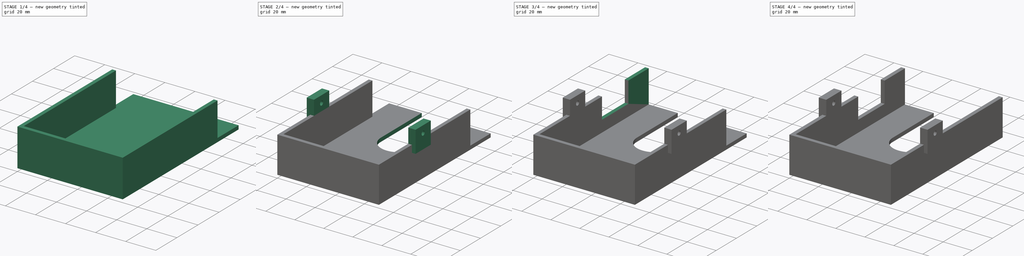
[diagram: build sequence overview — one tinted view per stage of 4, left to right]
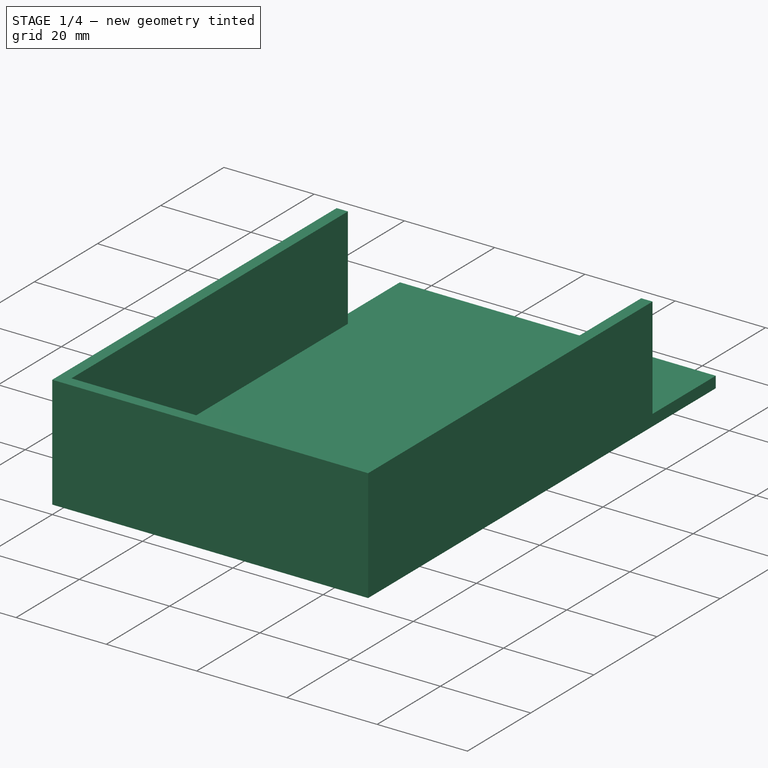
[diagram: stage 1 of 4 — iso view after this stage's code; geometry added in this stage tinted green]
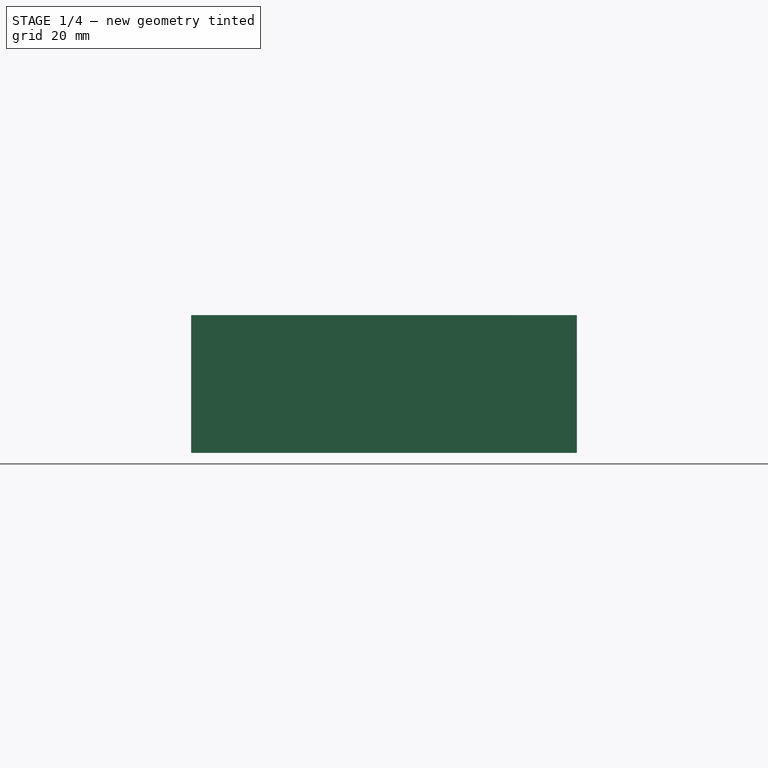
[diagram: stage 1 of 4 — front view after this stage's code; geometry added in this stage tinted green]
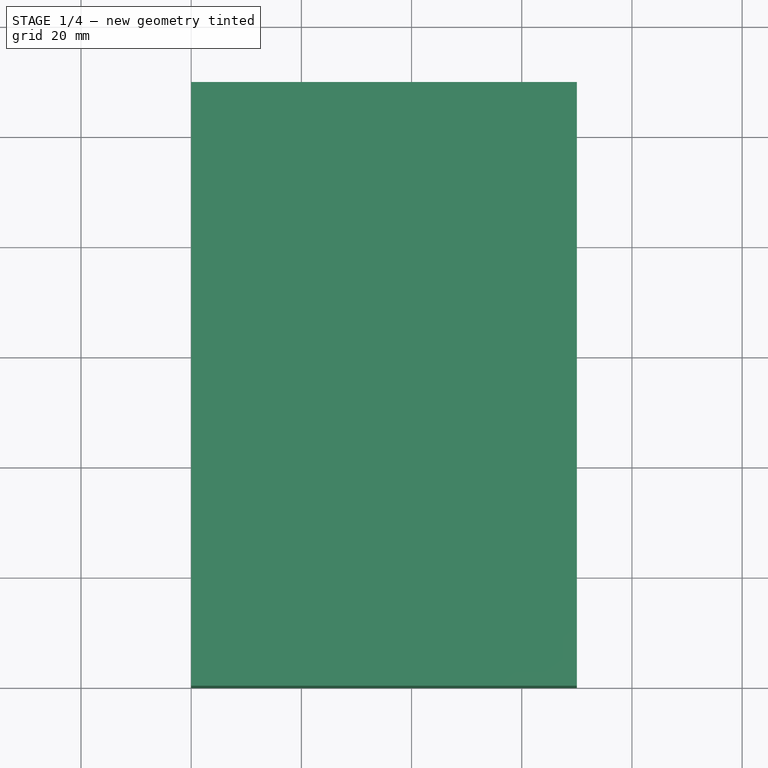
[diagram: stage 1 of 4 — top view after this stage's code; geometry added in this stage tinted green]
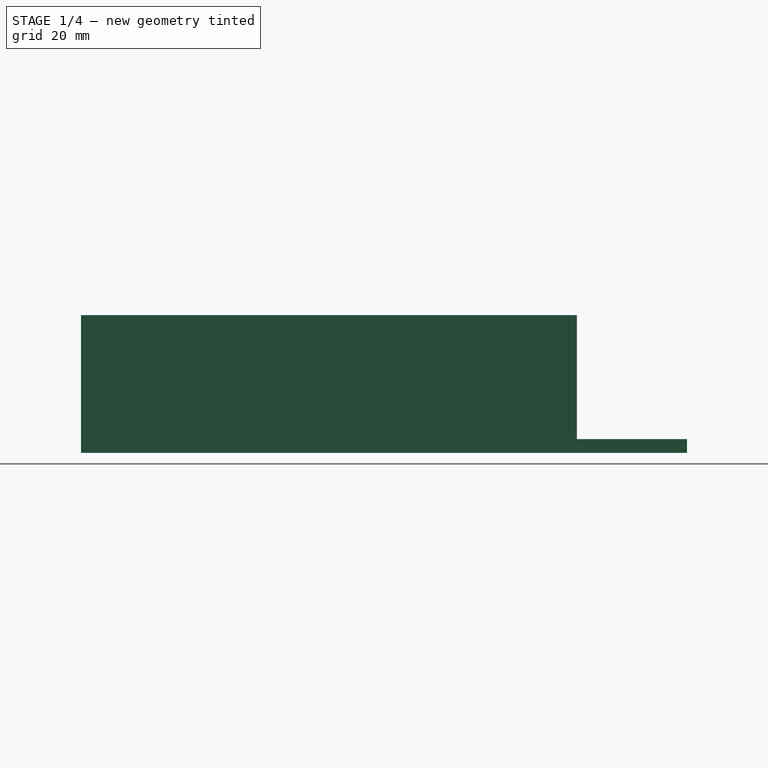
[diagram: stage 1 of 4 — right view after this stage's code; geometry added in this stage tinted green]
FCSTD DOCUMENT  (FreeCAD 1.0R39109 (Git))
Label: Gerüst-Kartenhalter-DerGerät
License: All rights reserved
LicenseURL: https://en.wikipedia.org/wiki/All_rights_reserved
objects: Sketcher::SketchObject×11, PartDesign::Pad×7, PartDesign::Pocket×4, PartDesign::Body×1
note: 56 computed .brp shape members not serialized (recipe doc carries the construction recipe); baked Part::Feature solids carry a one-line shape summary decoded from their .brp

FEATURE [Sketcher::SketchObject] Sketch
  ArcFitTolerance = 1e-06
  AttachmentSupport = -> [YZ_Plane]
  FullyConstrained = true
  MakeInternals = false
  MapMode = 5
  Placement = pos=(0,0,0) rot=(0.57735,0.57735,0.57735;2.0944rad)
  sketch-geometry (4):
    g0: LineSegment StartX=0 StartY=0 StartZ=0 EndX=110 EndY=0 EndZ=0
    g1: LineSegment StartX=110 StartY=0 StartZ=0 EndX=110 EndY=25 EndZ=0
    g2: LineSegment StartX=110 StartY=25 StartZ=0 EndX=0 EndY=25 EndZ=0
    g3: LineSegment StartX=0 StartY=25 StartZ=0 EndX=0 EndY=0 EndZ=0
  constraints (11):
    c: Coincident(g0,g1)
    c: Coincident(g1,g2)
    c: Coincident(g2,g3)
    c: Coincident(g3,g0)
    c: Horizontal(g0)
    c: Horizontal(g2)
    c: Vertical(g1)
    c: Vertical(g3)
    c: Distance(g1,g3) = 110
    c: Distance(g0,g2) = 25
    c: Coincident(g0,g-1)
FEATURE [PartDesign::Pad] Pad
  Direction = (1,0,0)
  Length = 70
  Length2 = 10
  Placement = pos=(0,0,0) rot=(1,1,1;2.0944rad)
  Profile = -> Sketch
  ReferenceAxis = -> Sketch [N_Axis]
  Refine = true
  Suppressed = false
  Type = 0
FEATURE [Sketcher::SketchObject] Sketch001
  ArcFitTolerance = 1e-06
  AttachmentSupport = -> [Pad]
  ExternalGeometry = -> [Pad]
  FullyConstrained = true
  MakeInternals = false
  MapMode = 5
  Placement = pos=(-2.8e-15,8.3e-15,25) rot=(0,0,-1;1.5708rad)
  sketch-geometry (9):
    g0: LineSegment [constr] StartX=-110 StartY=70 StartZ=0 EndX=0 EndY=0 EndZ=0
    g1: LineSegment StartX=-107.5 StartY=2.5 StartZ=0 EndX=-2.5 EndY=2.5 EndZ=0
    g2: LineSegment StartX=-2.5 StartY=2.5 StartZ=0 EndX=-2.5 EndY=67.5 EndZ=0
    g3: LineSegment StartX=-2.5 StartY=67.5 StartZ=0 EndX=-107.5 EndY=67.5 EndZ=0
    g4: LineSegment [constr] StartX=-107.5 StartY=67.5 StartZ=0 EndX=-107.5 EndY=2.5 EndZ=0
    g5: GeomPoint [constr] X=-55 Y=35 Z=0
    g6: LineSegment StartX=-107.5 StartY=67.5 StartZ=0 EndX=-110 EndY=67.5 EndZ=0
    g7: LineSegment StartX=-110 StartY=67.5 StartZ=0 EndX=-110 EndY=2.5 EndZ=0
    g8: LineSegment StartX=-110 StartY=2.5 StartZ=0 EndX=-107.5 EndY=2.5 EndZ=0
  constraints (22):
    c: Coincident(g0,g-3)
    c: Coincident(g0,g-1)
    c: Coincident(g1,g2)
    c: Coincident(g2,g3)
    c: Coincident(g3,g4)
    c: Coincident(g4,g1)
    c: Horizontal(g1)
    c: Horizontal(g3)
    c: Vertical(g2)
    c: Vertical(g4)
    c: Symmetric(g3,g1,g5)
    c: Symmetric(g0,g0,g5)
    c: DistanceY(g2,g2) = 65
    c: DistanceX(g1,g1) = 105
    c: Coincident(g3,g6)
    c: PointOnObject(g6,g-4)
    c: Horizontal(g6)
    c: Coincident(g6,g7)
    c: PointOnObject(g7,g-4)
    c: Coincident(g7,g8)
    c: Coincident(g8,g1)
    c: Horizontal(g8)
FEATURE [PartDesign::Pocket] Pocket
  BaseFeature = -> Pad
  Direction = (0,0,-1)
  Length = 22.5
  Length2 = 5
  Placement = pos=(0,0,0) rot=(1,1,1;2.0944rad)
  Profile = -> Sketch001
  ReferenceAxis = -> Sketch001 [N_Axis]
  Refine = true
  Suppressed = false
  Type = 0
FEATURE [Sketcher::SketchObject] Sketch002
  ArcFitTolerance = 1e-06
  AttachmentSupport = -> [Pocket]
  ExternalGeometry = -> [Pocket]
  FullyConstrained = true
  MakeInternals = false
  MapMode = 5
  Placement = pos=(70,-3.11e-14,1.55e-14) rot=(0.57735,0.57735,0.57735;2.0944rad)
  sketch-geometry (4):
    g0: LineSegment StartX=110 StartY=25 StartZ=0 EndX=90 EndY=25 EndZ=0
    g1: LineSegment StartX=90 StartY=25 StartZ=0 EndX=90 EndY=2.5 EndZ=0
    g2: LineSegment StartX=90 StartY=2.5 StartZ=0 EndX=110 EndY=2.5 EndZ=0
    g3: LineSegment StartX=110 StartY=2.5 StartZ=0 EndX=110 EndY=25 EndZ=0
  constraints (11):
    c: Coincident(g0,g1)
    c: Coincident(g1,g2)
    c: Coincident(g2,g3)
    c: Coincident(g3,g0)
    c: Horizontal(g0)
    c: Horizontal(g2)
    c: Vertical(g1)
    c: Vertical(g3)
    c: Coincident(g0,g-3)
    c: DistanceX(g2,g2) = 20
    c: DistanceY(g3,g3) = 22.5
FEATURE [PartDesign::Pocket] Pocket001
  BaseFeature = -> Pocket
  Direction = (-1,0,0)
  Length = 5
  Length2 = 5
  Placement = pos=(0,0,0) rot=(1,1,1;2.0944rad)
  Profile = -> Sketch002
  ReferenceAxis = -> Sketch002 [N_Axis]
  Refine = true
  Suppressed = false
  Type = 1
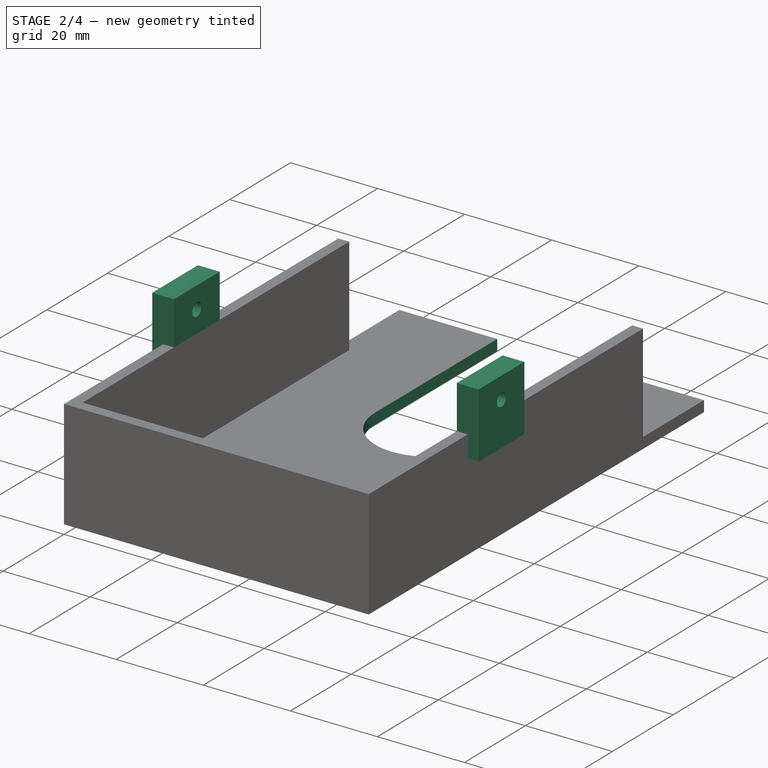
[diagram: stage 2 of 4 — iso view after this stage's code; geometry added in this stage tinted green]
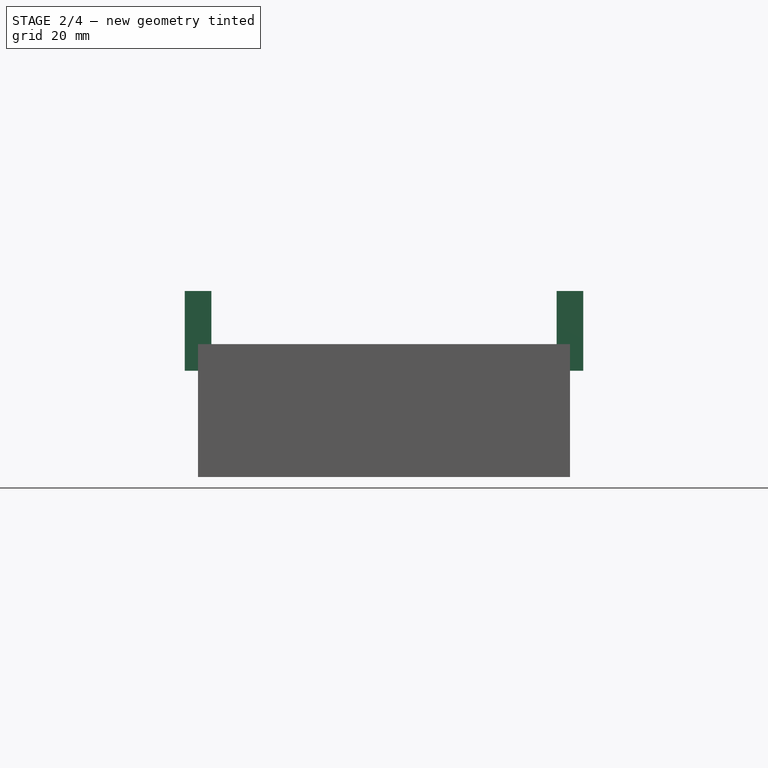
[diagram: stage 2 of 4 — front view after this stage's code; geometry added in this stage tinted green]
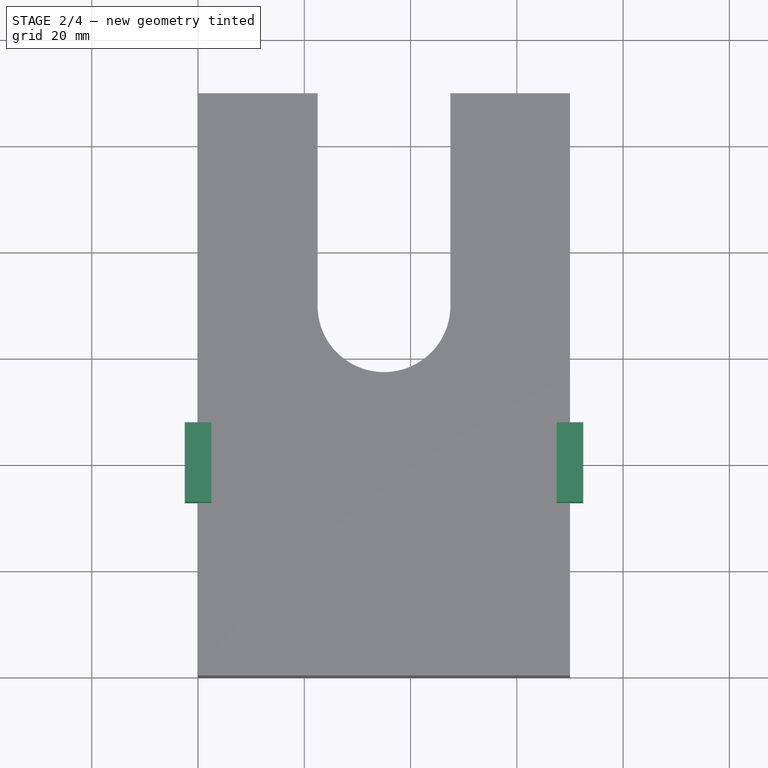
[diagram: stage 2 of 4 — top view after this stage's code; geometry added in this stage tinted green]
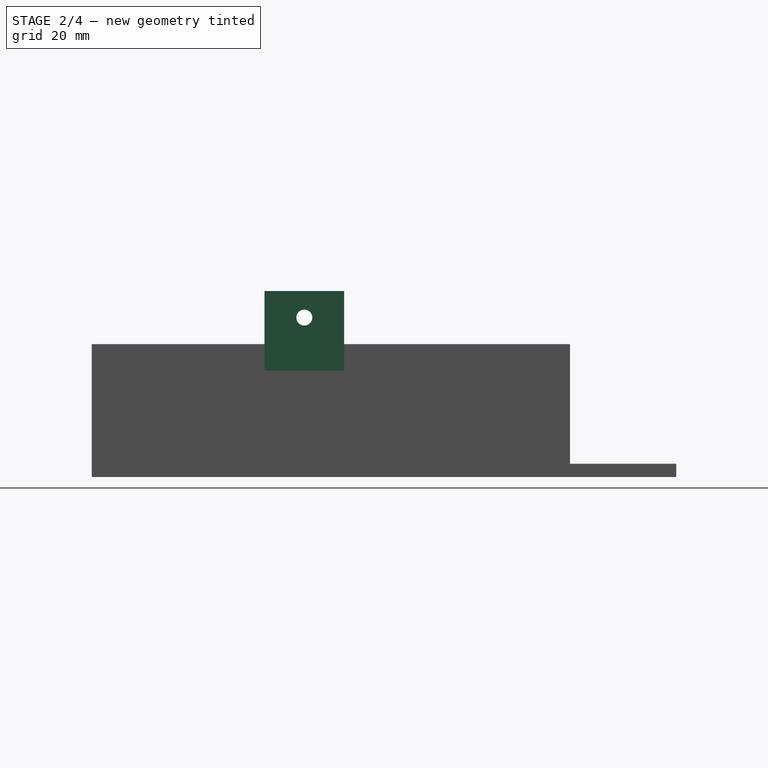
[diagram: stage 2 of 4 — right view after this stage's code; geometry added in this stage tinted green]
FEATURE [Sketcher::SketchObject] Sketch003
  ArcFitTolerance = 1e-06
  AttachmentSupport = -> [Pocket001]
  ExternalGeometry = -> [Pocket001]
  FullyConstrained = true
  MakeInternals = false
  MapMode = 5
  Placement = pos=(70,-4.66e-14,2.33e-14) rot=(0.57735,0.57735,0.57735;2.0944rad)
  sketch-geometry (6):
    g0: LineSegment StartX=32.5 StartY=20 StartZ=0 EndX=47.5 EndY=20 EndZ=0
    g1: LineSegment StartX=47.5 StartY=20 StartZ=0 EndX=47.5 EndY=35 EndZ=0
    g2: LineSegment StartX=47.5 StartY=35 StartZ=0 EndX=32.5 EndY=35 EndZ=0
    g3: LineSegment StartX=32.5 StartY=35 StartZ=0 EndX=32.5 EndY=20 EndZ=0
    g4: Circle CenterX=40 CenterY=30 CenterZ=0 NormalX=0 NormalY=0 NormalZ=1 AngleXU=0 Radius=1.5
    g5: LineSegment [constr] StartX=32.5 StartY=25 StartZ=0 EndX=47.5 EndY=35 EndZ=0
  constraints (17):
    c: Coincident(g0,g1)
    c: Coincident(g1,g2)
    c: Coincident(g2,g3)
    c: Coincident(g3,g0)
    c: Horizontal(g0)
    c: Horizontal(g2)
    c: Vertical(g1)
    c: Vertical(g3)
    c: DistanceX(g0,g0) = 15
    c: Diameter(g4) = 3
    c: PointOnObject(g5,g-4)
    c: Coincident(g5,g1)
    c: PointOnObject(g5,g3)
    c: Symmetric(g5,g5,g4)
    c: DistanceY(g3,g3) = 15
    c: Distance(g2,g-4) = 10
    c: DistanceX(g4,g-4) = 50
FEATURE [PartDesign::Pad] Pad001
  BaseFeature = -> Pocket001
  Direction = (1,0,0)
  Length = 5
  Length2 = 10
  Midplane = true
  Placement = pos=(0,0,0) rot=(1,1,1;2.0944rad)
  Profile = -> Sketch003
  ReferenceAxis = -> Sketch003 [N_Axis]
  Refine = true
  Suppressed = false
  Type = 0
FEATURE [Sketcher::SketchObject] Sketch004
  ArcFitTolerance = 1e-06
  AttachmentSupport = -> [Pad001]
  ExternalGeometry = -> [Pad001]
  FullyConstrained = true
  MakeInternals = false
  MapMode = 5
  Placement = pos=(0,0,0) rot=(0.57735,0.57735,-0.57735;4.18879rad)
  sketch-geometry (6):
    g0: LineSegment StartX=32.5 StartY=-35 StartZ=0 EndX=47.5 EndY=-35 EndZ=0
    g1: LineSegment StartX=47.5 StartY=-35 StartZ=0 EndX=47.5 EndY=-20 EndZ=0
    g2: LineSegment StartX=47.5 StartY=-20 StartZ=0 EndX=32.5 EndY=-20 EndZ=0
    g3: LineSegment StartX=32.5 StartY=-20 StartZ=0 EndX=32.5 EndY=-35 EndZ=0
    g4: LineSegment [constr] StartX=32.5 StartY=-35 StartZ=0 EndX=47.5 EndY=-25 EndZ=0
    g5: Circle CenterX=40 CenterY=-30 CenterZ=0 NormalX=0 NormalY=0 NormalZ=1 AngleXU=0 Radius=1.5
  constraints (14):
    c: Coincident(g-5,g0)
    c: Coincident(g0,g-4)
    c: Coincident(g0,g1)
    c: Coincident(g1,g2)
    c: Horizontal(g2)
    c: Coincident(g2,g3)
    c: Coincident(g3,g0)
    c: PointOnObject(g-5,g3)
    c: PointOnObject(g-4,g1)
    c: DistanceY(g1,g1) = 15
    c: Coincident(g4,g0)
    c: Coincident(g4,g-4)
    c: Diameter(g5) = 3
    c: Symmetric(g4,g4,g5)
FEATURE [PartDesign::Pad] Pad002
  BaseFeature = -> Pad001
  Direction = (-1,0,0)
  Length = 5
  Length2 = 10
  Midplane = true
  Placement = pos=(0,0,0) rot=(1,1,1;2.0944rad)
  Profile = -> Sketch004
  ReferenceAxis = -> Sketch004 [N_Axis]
  Refine = true
  Suppressed = false
  Type = 0
FEATURE [Sketcher::SketchObject] Sketch005
  ArcFitTolerance = 1e-06
  FullyConstrained = true
  MakeInternals = false
  MapMode = 5
  Placement = pos=(0,0,0) rot=(0.707107,0.707107,0;3.14159rad)
  sketch-geometry (4):
    g0: ArcOfCircle CenterX=70 CenterY=35 CenterZ=0 NormalX=0 NormalY=0 NormalZ=1 AngleXU=0 Radius=12.5 StartAngle=1.5708 EndAngle=4.71239
    g1: ArcOfCircle CenterX=110 CenterY=35 CenterZ=0 NormalX=0 NormalY=0 NormalZ=1 AngleXU=0 Radius=12.5 StartAngle=4.71239 EndAngle=7.85398
    g2: LineSegment StartX=70 StartY=47.5 StartZ=0 EndX=110 EndY=47.5 EndZ=0
    g3: LineSegment StartX=70 StartY=22.5 StartZ=0 EndX=110 EndY=22.5 EndZ=0
  constraints (9):
    c: Tangent(g0,g2) = 1.5708
    c: Tangent(g0,g3) = -1.5708
    c: Tangent(g1,g2) = 1.5708
    c: Tangent(g1,g3) = -1.5708
    c: Equal(g0,g1)
    c: Horizontal(g2)
    c: Symmetric(g-3,g-3,g1)
    c: DistanceX(g3,g3) = 40
    c: Distance(g3,g2) = 25
FEATURE [PartDesign::Pocket] Pocket002
  BaseFeature = -> Pad002
  Direction = (0,0,1)
  Length = 2.5
  Length2 = 5
  Placement = pos=(0,0,0) rot=(1,1,1;2.0944rad)
  Profile = -> Sketch005
  ReferenceAxis = -> Sketch005 [N_Axis]
  Refine = true
  Suppressed = false
  Type = 0
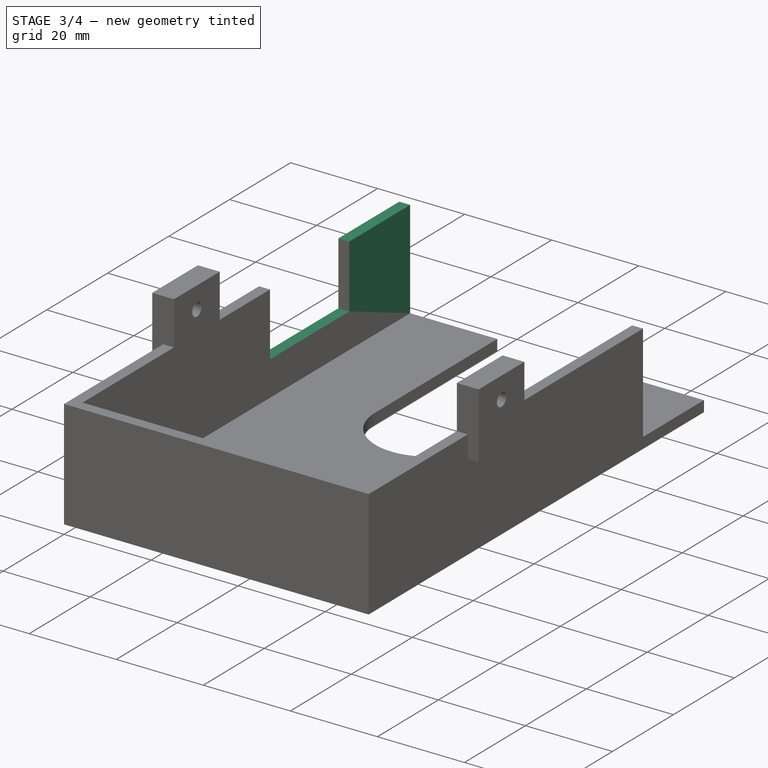
[diagram: stage 3 of 4 — iso view after this stage's code; geometry added in this stage tinted green]
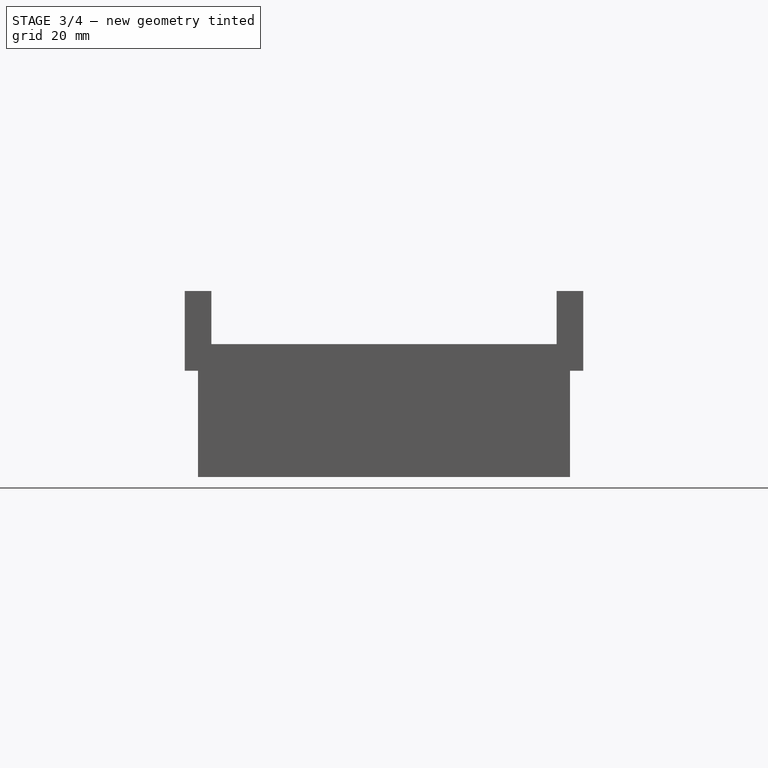
[diagram: stage 3 of 4 — front view after this stage's code; geometry added in this stage tinted green]
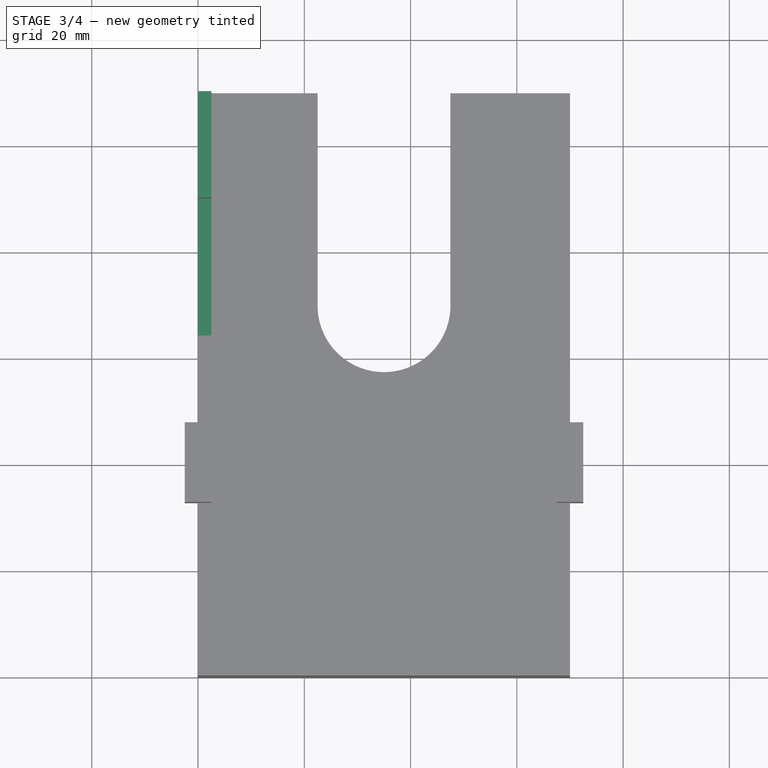
[diagram: stage 3 of 4 — top view after this stage's code; geometry added in this stage tinted green]
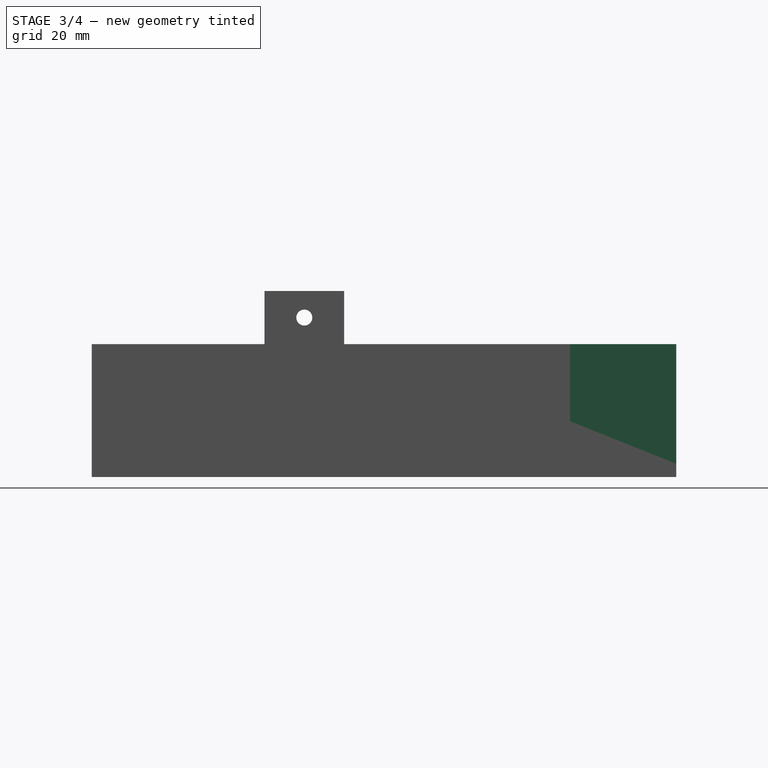
[diagram: stage 3 of 4 — right view after this stage's code; geometry added in this stage tinted green]
FEATURE [Sketcher::SketchObject] Sketch006
  ArcFitTolerance = 1e-06
  AttachmentSupport = -> [Pocket002]
  ExternalGeometry = -> [Pocket002]
  FullyConstrained = true
  MakeInternals = false
  MapMode = 5
  Placement = pos=(0,0,0) rot=(-0.57735,-0.57735,0.57735;2.0944rad)
  sketch-geometry (4):
    g0: LineSegment StartX=64 StartY=-25 StartZ=0 EndX=90 EndY=-25 EndZ=0
    g1: LineSegment StartX=90 StartY=-25 StartZ=0 EndX=90 EndY=-10.5 EndZ=0
    g2: LineSegment StartX=90 StartY=-10.5 StartZ=0 EndX=64 EndY=-10.5 EndZ=0
    g3: LineSegment StartX=64 StartY=-10.5 StartZ=0 EndX=64 EndY=-25 EndZ=0
  constraints (11):
    c: Coincident(g0,g1)
    c: Coincident(g1,g2)
    c: Coincident(g2,g3)
    c: Coincident(g3,g0)
    c: Horizontal(g0)
    c: Horizontal(g2)
    c: Vertical(g1)
    c: Vertical(g3)
    c: Distance(g1,g3) = 26
    c: Distance(g0,g2) = 14.5
    c: Coincident(g-3,g0)
FEATURE [PartDesign::Pocket] Pocket003
  BaseFeature = -> Pocket002
  Direction = (1,-1.3e-15,0)
  Length = 2.5
  Length2 = 5
  Placement = pos=(0,0,0) rot=(1,1,1;2.0944rad)
  Profile = -> Sketch006
  ReferenceAxis = -> Sketch006 [N_Axis]
  Refine = true
  Suppressed = false
  Type = 0
FEATURE [Sketcher::SketchObject] Sketch007
  ArcFitTolerance = 1e-06
  AttachmentSupport = -> [Pocket003]
  ExternalGeometry = -> [Pocket003]
  FullyConstrained = true
  MakeInternals = false
  MapMode = 5
  Placement = pos=(-1.4e-15,3e-15,2.5) rot=(0,0,-1;1.5708rad)
  sketch-geometry (4):
    g0: LineSegment StartX=-90 StartY=2.5 StartZ=0 EndX=-110 EndY=2.5 EndZ=0
    g1: LineSegment StartX=-110 StartY=2.5 StartZ=0 EndX=-110 EndY=3.1e-15 EndZ=0
    g2: LineSegment StartX=-110 StartY=3.1e-15 StartZ=0 EndX=-90 EndY=3.1e-15 EndZ=0
    g3: LineSegment StartX=-90 StartY=3.1e-15 StartZ=0 EndX=-90 EndY=2.5 EndZ=0
  constraints (10):
    c: Coincident(g0,g1)
    c: Coincident(g1,g2)
    c: Coincident(g2,g3)
    c: Coincident(g3,g0)
    c: Horizontal(g0)
    c: Vertical(g1)
    c: Vertical(g3)
    c: Distance(g0,g2) = 2.5
    c: Coincident(g2,g-3)
    c: Coincident(g1,g-4)
FEATURE [PartDesign::Pad] Pad003
  BaseFeature = -> Pocket003
  Direction = (-1.4e-15,1.2e-15,1)
  Length = 22.5
  Length2 = 10
  Placement = pos=(0,0,0) rot=(1,1,1;2.0944rad)
  Profile = -> Sketch007
  ReferenceAxis = -> Sketch007 [N_Axis]
  Refine = true
  Suppressed = false
  Type = 0
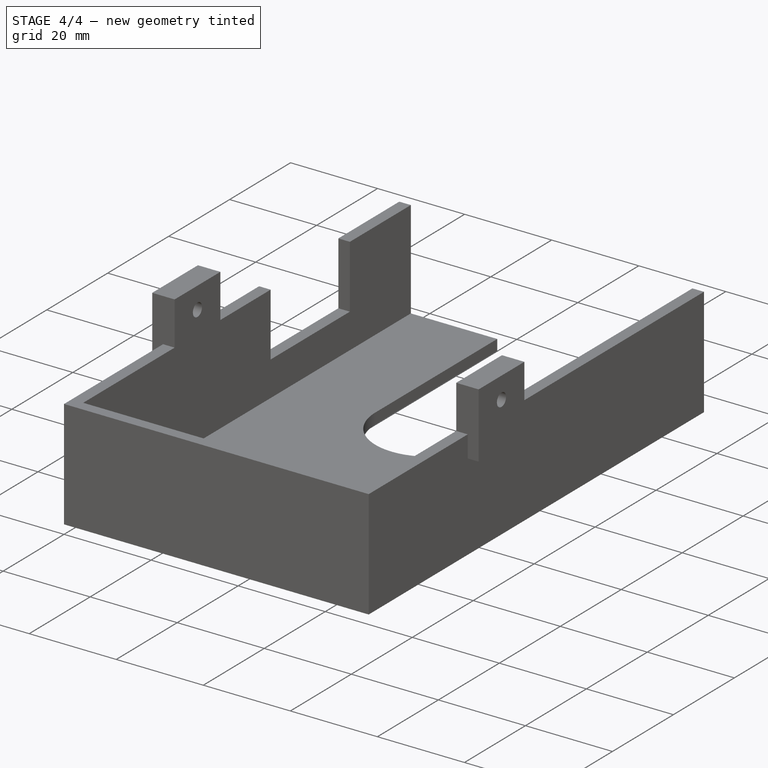
[diagram: stage 4 of 4 — iso view after this stage's code; geometry added in this stage tinted green]
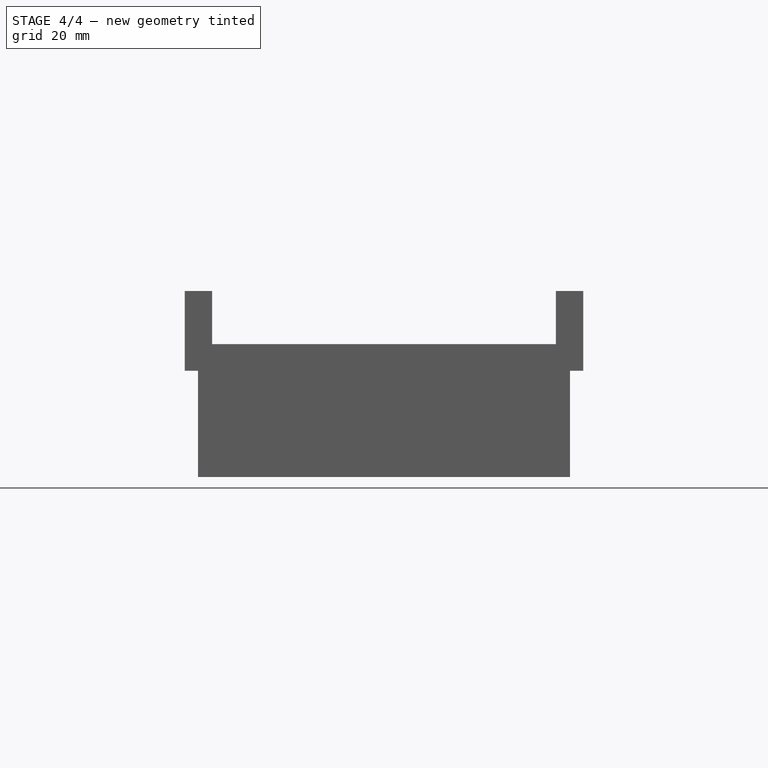
[diagram: stage 4 of 4 — front view after this stage's code; geometry added in this stage tinted green]
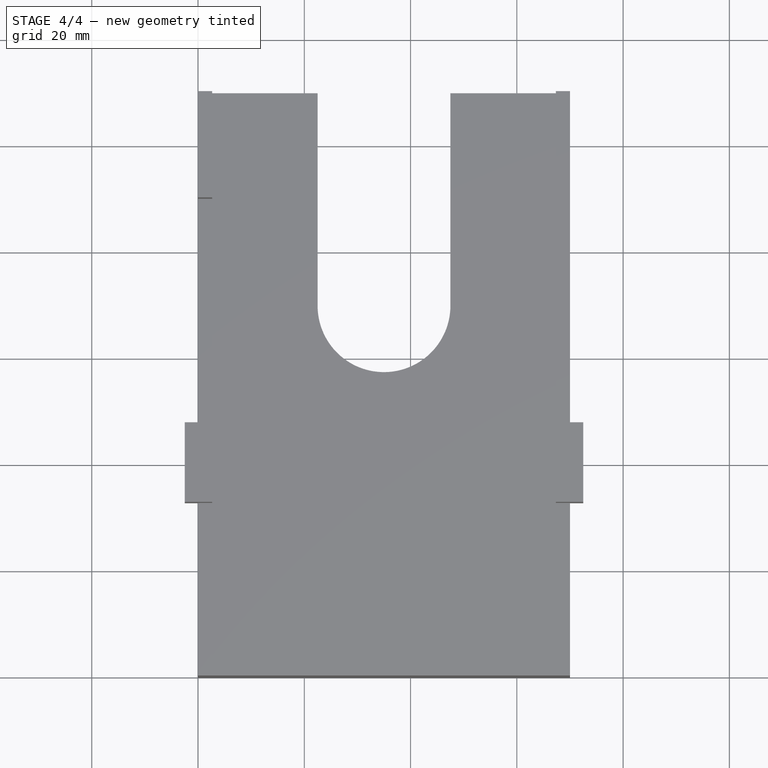
[diagram: stage 4 of 4 — top view after this stage's code; geometry added in this stage tinted green]
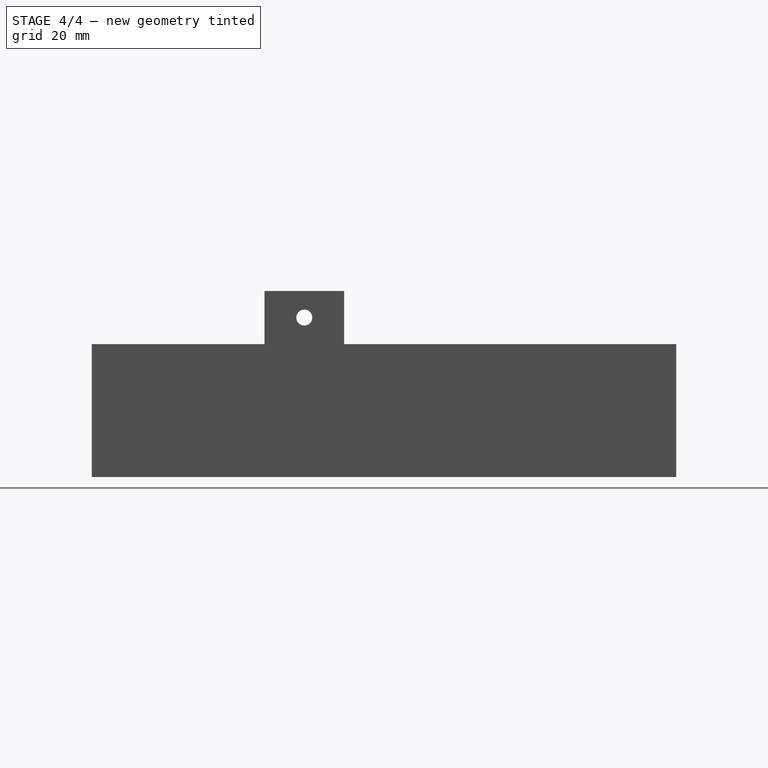
[diagram: stage 4 of 4 — right view after this stage's code; geometry added in this stage tinted green]
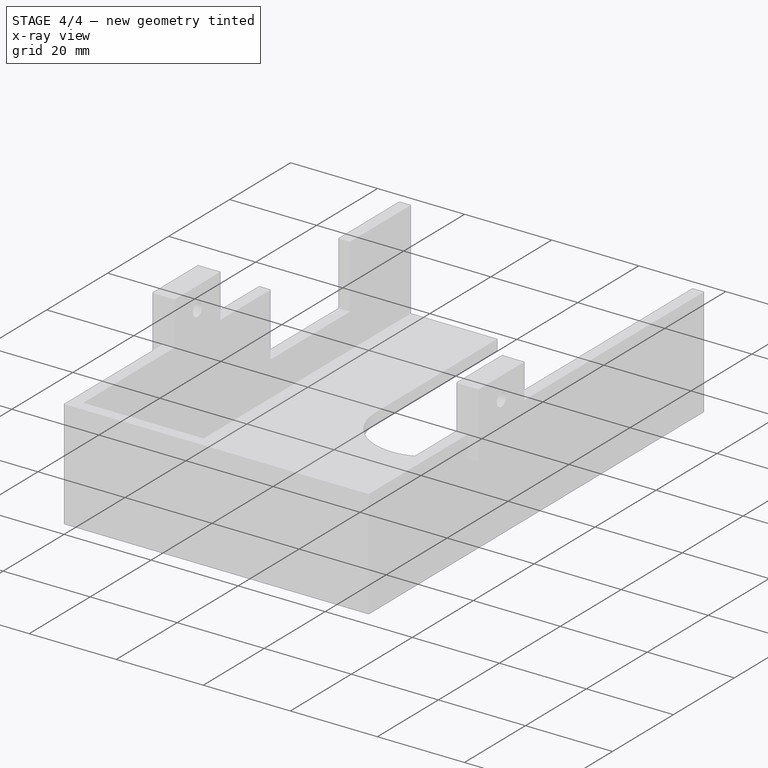
[diagram: stage 4 of 4 — x-ray composite at the iso view; earlier geometry ghosted, this stage's added geometry solid]
FEATURE [Sketcher::SketchObject] Sketch008
  ArcFitTolerance = 1e-06
  AttachmentSupport = -> [Pad003]
  ExternalGeometry = -> [Pad003]
  FullyConstrained = true
  MakeInternals = false
  MapMode = 5
  Placement = pos=(-1.7e-15,3.3e-15,2.5) rot=(0,0,-1;1.5708rad)
  sketch-geometry (4):
    g0: LineSegment StartX=-90 StartY=70 StartZ=0 EndX=-110 EndY=70 EndZ=0
    g1: LineSegment StartX=-110 StartY=70 StartZ=0 EndX=-110 EndY=67.5 EndZ=0
    g2: LineSegment StartX=-110 StartY=67.5 StartZ=0 EndX=-90 EndY=67.5 EndZ=0
    g3: LineSegment StartX=-90 StartY=67.5 StartZ=0 EndX=-90 EndY=70 EndZ=0
  constraints (11):
    c: Coincident(g0,g1)
    c: Coincident(g1,g2)
    c: Coincident(g2,g3)
    c: Coincident(g3,g0)
    c: Horizontal(g0)
    c: Horizontal(g2)
    c: Vertical(g1)
    c: Vertical(g3)
    c: Coincident(g0,g-3)
    c: PointOnObject(g1,g-4)
    c: DistanceY(g1,g1) = 2.5
FEATURE [PartDesign::Pad] Pad004
  BaseFeature = -> Pad003
  Direction = (-1.8e-15,1.3e-15,1)
  Length = 22.5
  Length2 = 10
  Placement = pos=(0,0,0) rot=(1,1,1;2.0944rad)
  Profile = -> Sketch008
  ReferenceAxis = -> Sketch008 [N_Axis]
  Refine = true
  Suppressed = false
  Type = 0
FEATURE [Sketcher::SketchObject] Sketch009
  ArcFitTolerance = 1e-06
  AttachmentSupport = -> [Pad004]
  ExternalGeometry = -> [Pad004]
  FullyConstrained = true
  MakeInternals = false
  MapMode = 5
  Placement = pos=(2.5,-6e-16,7e-15) rot=(0.57735,0.57735,0.57735;2.0944rad)
  sketch-geometry (13):
    g0: LineSegment StartX=110 StartY=25 StartZ=0 EndX=110 EndY=2.5 EndZ=0
    g1: LineSegment StartX=110 StartY=2.5 StartZ=0 EndX=2.5 EndY=2.5 EndZ=0
    g2: LineSegment StartX=2.5 StartY=2.5 StartZ=0 EndX=2.5 EndY=25 EndZ=0
    g3: LineSegment StartX=2.5 StartY=25 StartZ=0 EndX=32.5 EndY=25 EndZ=0
    g4: LineSegment StartX=32.5 StartY=25 StartZ=0 EndX=32.5 EndY=35 EndZ=0
    g5: LineSegment StartX=32.5 StartY=35 StartZ=0 EndX=47.5 EndY=35 EndZ=0
    g6: LineSegment StartX=47.5 StartY=35 StartZ=0 EndX=47.5 EndY=25 EndZ=0
    g7: LineSegment StartX=47.5 StartY=25 StartZ=0 EndX=64 EndY=25 EndZ=0
    g8: LineSegment StartX=64 StartY=25 StartZ=0 EndX=64 EndY=10.5 EndZ=0
    g9: LineSegment StartX=64 StartY=10.5 StartZ=0 EndX=90 EndY=10.5 EndZ=0
    g10: LineSegment StartX=90 StartY=10.5 StartZ=0 EndX=90 EndY=25 EndZ=0
    g11: LineSegment StartX=90 StartY=25 StartZ=0 EndX=110 EndY=25 EndZ=0
    g12: Circle CenterX=40 CenterY=30 CenterZ=0 NormalX=0 NormalY=0 NormalZ=1 AngleXU=0 Radius=1.5
  constraints (26):
    c: Coincident(g0,g-6)
    c: Coincident(g0,g-7)
    c: Coincident(g0,g1)
    c: Coincident(g1,g-8)
    c: Coincident(g1,g2)
    c: Coincident(g2,g-9)
    c: Coincident(g2,g3)
    c: Coincident(g3,g-10)
    c: Coincident(g3,g4)
    c: Coincident(g4,g-11)
    c: Coincident(g4,g5)
    c: Coincident(g5,g-12)
    c: Coincident(g5,g6)
    c: Coincident(g6,g-13)
    c: Coincident(g6,g7)
    c: Coincident(g7,g-14)
    c: Coincident(g7,g8)
    c: Coincident(g8,g-14)
    c: Coincident(g8,g9)
    c: Coincident(g9,g-4)
    c: Coincident(g9,g10)
    c: Coincident(g10,g-5)
    c: Coincident(g10,g11)
    c: Coincident(g11,g0)
    c: Coincident(g12,g-15)
    c: Equal(g12,g-15)
FEATURE [PartDesign::Pad] Pad005
  BaseFeature = -> Pad004
  Direction = (1,1e-16,2.8e-15)
  Length = 0.15
  Length2 = 10
  Placement = pos=(0,0,0) rot=(1,1,1;2.0944rad)
  Profile = -> Sketch009
  ReferenceAxis = -> Sketch009 [N_Axis]
  Refine = true
  Suppressed = false
  Type = 0
FEATURE [Sketcher::SketchObject] Sketch010
  ArcFitTolerance = 1e-06
  AttachmentSupport = -> [Pad005]
  ExternalGeometry = -> [Pad005]
  FullyConstrained = true
  MakeInternals = false
  MapMode = 5
  Placement = pos=(67.5,3.83e-14,2.115e-13) rot=(0.57735,0.57735,-0.57735;4.18879rad)
  sketch-geometry (9):
    g0: LineSegment StartX=2.5 StartY=-2.5 StartZ=0 EndX=110 EndY=-2.5 EndZ=0
    g1: LineSegment StartX=110 StartY=-2.5 StartZ=0 EndX=110 EndY=-25 EndZ=0
    g2: LineSegment StartX=110 StartY=-25 StartZ=0 EndX=47.5 EndY=-25 EndZ=0
    g3: LineSegment StartX=47.5 StartY=-25 StartZ=0 EndX=47.5 EndY=-35 EndZ=0
    g4: LineSegment StartX=47.5 StartY=-35 StartZ=0 EndX=32.5 EndY=-35 EndZ=0
    g5: LineSegment StartX=32.5 StartY=-35 StartZ=0 EndX=32.5 EndY=-25 EndZ=0
    g6: LineSegment StartX=32.5 StartY=-25 StartZ=0 EndX=2.5 EndY=-25 EndZ=0
    g7: LineSegment StartX=2.5 StartY=-25 StartZ=0 EndX=2.5 EndY=-2.5 EndZ=0
    g8: Circle CenterX=40 CenterY=-30 CenterZ=0 NormalX=0 NormalY=0 NormalZ=1 AngleXU=0 Radius=1.5
  constraints (18):
    c: Coincident(g-3,g0)
    c: Coincident(g0,g-4)
    c: Coincident(g0,g1)
    c: Coincident(g1,g-5)
    c: Coincident(g1,g2)
    c: Coincident(g2,g-6)
    c: Coincident(g2,g3)
    c: Coincident(g3,g-7)
    c: Coincident(g3,g4)
    c: Coincident(g4,g-9)
    c: Coincident(g4,g5)
    c: Coincident(g5,g-10)
    c: Coincident(g5,g6)
    c: Coincident(g6,g-10)
    c: Coincident(g6,g7)
    c: Coincident(g7,g0)
    c: Coincident(g8,g-8)
    c: Equal(g8,g-8)
FEATURE [PartDesign::Pad] Pad006
  BaseFeature = -> Pad005
  Direction = (-1,0,-3.1e-15)
  Length = 0.15
  Length2 = 10
  Placement = pos=(0,0,0) rot=(1,1,1;2.0944rad)
  Profile = -> Sketch010
  ReferenceAxis = -> Sketch010 [N_Axis]
  Refine = true
  Suppressed = false
  Type = 0
FEATURE [PartDesign::Body] Body  label="Körper"
  AllowCompound = false
  Group = -> [Sketch,Pad,Sketch001,Pocket,Sketch002,Pocket001,Sketch003,Pad001,Sketch004,Pad002,Sketch005,Pocket002,Sketch006,Pocket003,Sketch007,Pad003,Sketch008,Pad004,Sketch009,Pad005,Sketch010,Pad006]
  Origin = -> Origin
  Tip = -> Pad006
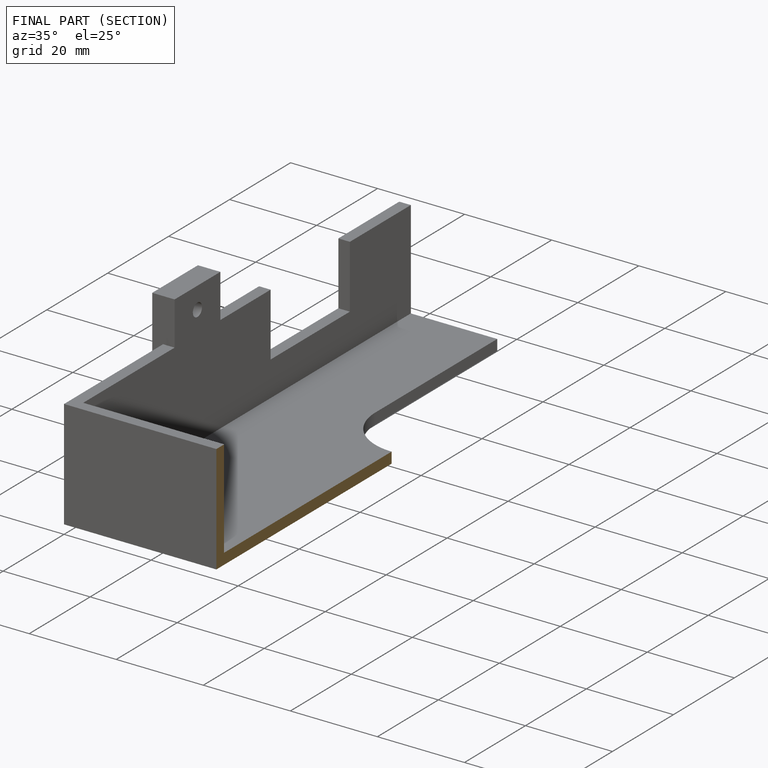
[diagram: finished part — half-section view (interior)]
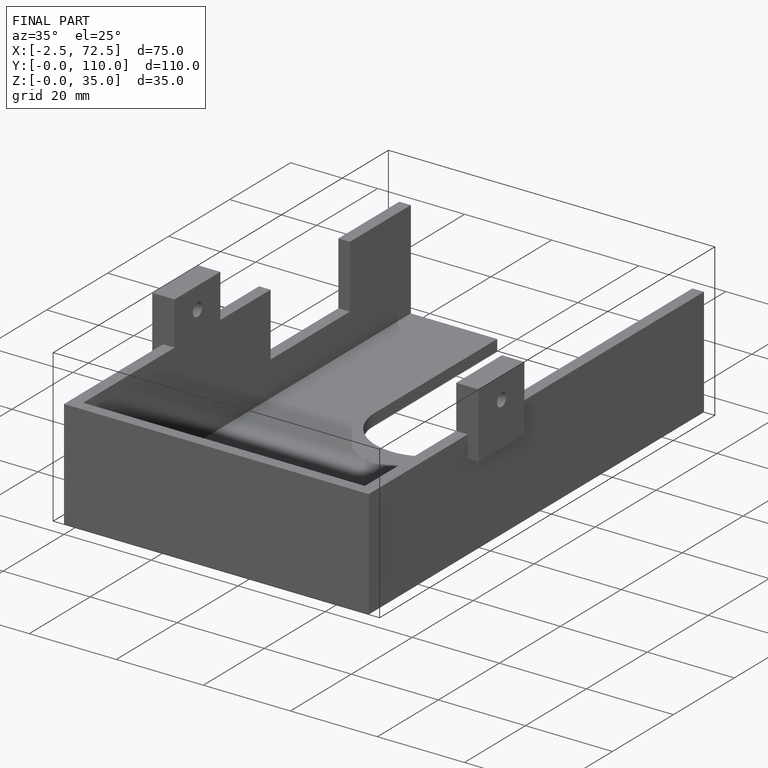
[diagram: finished part — iso view with bounding-box wireframe]
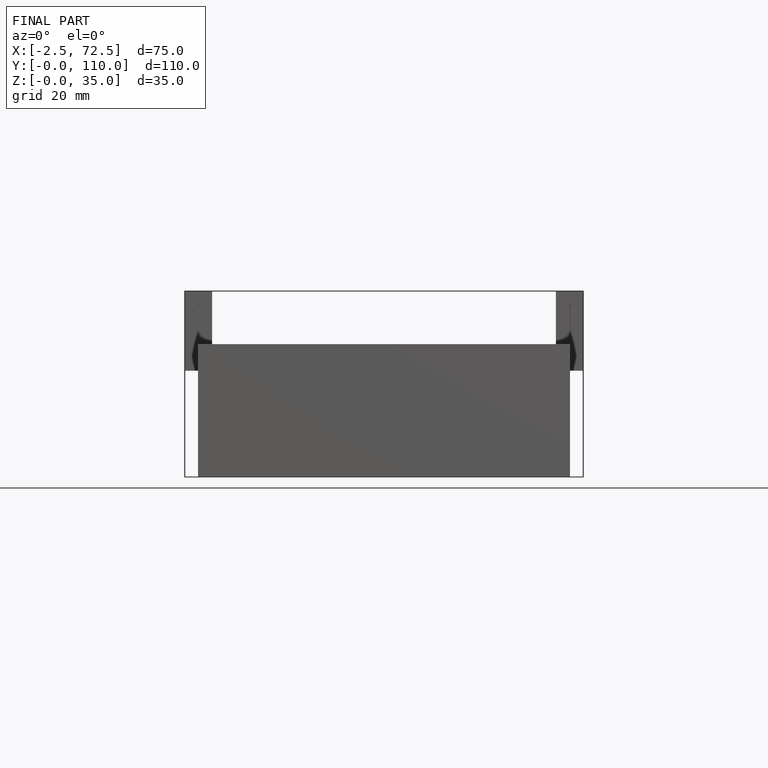
[diagram: finished part — front view with bounding-box wireframe]
